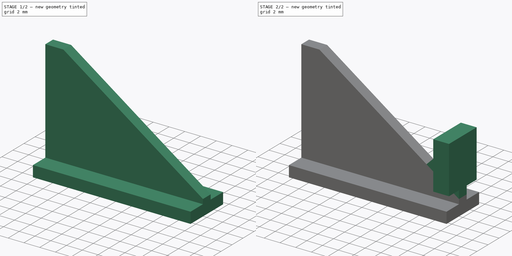
[diagram: build sequence overview — one tinted view per stage of 2, left to right]
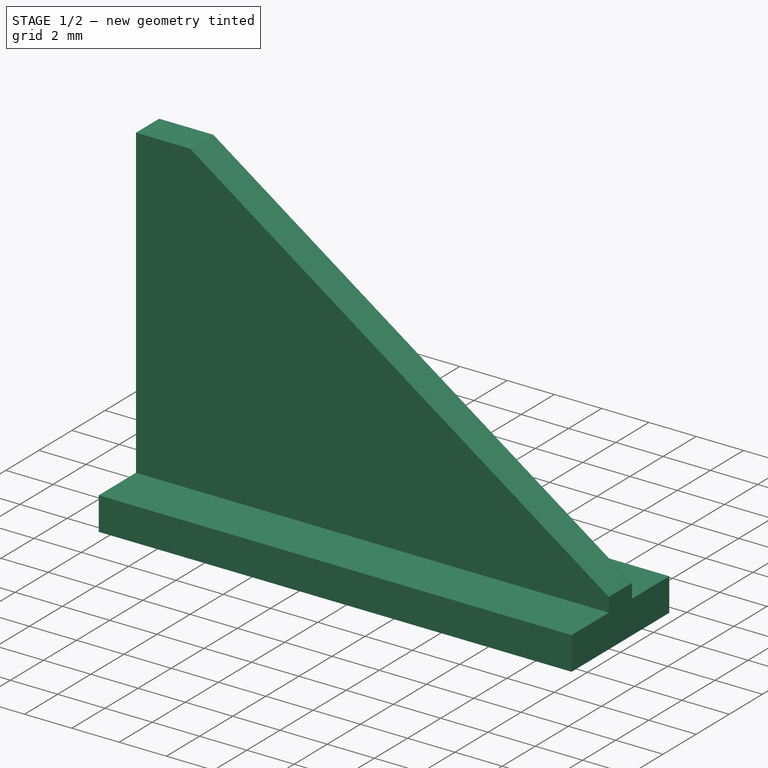
[diagram: stage 1 of 2 — iso view after this stage's code; geometry added in this stage tinted green]
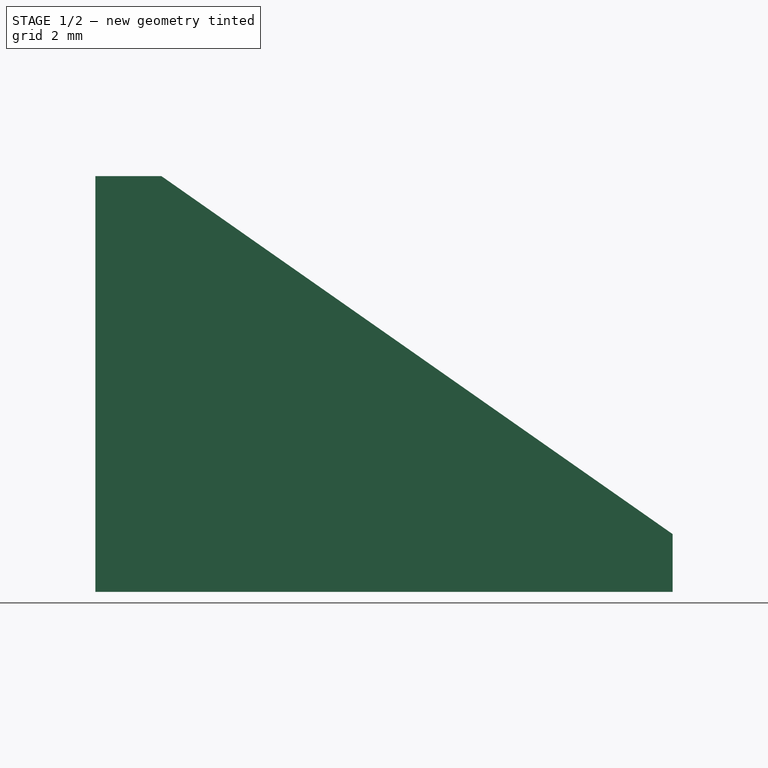
[diagram: stage 1 of 2 — front view after this stage's code; geometry added in this stage tinted green]
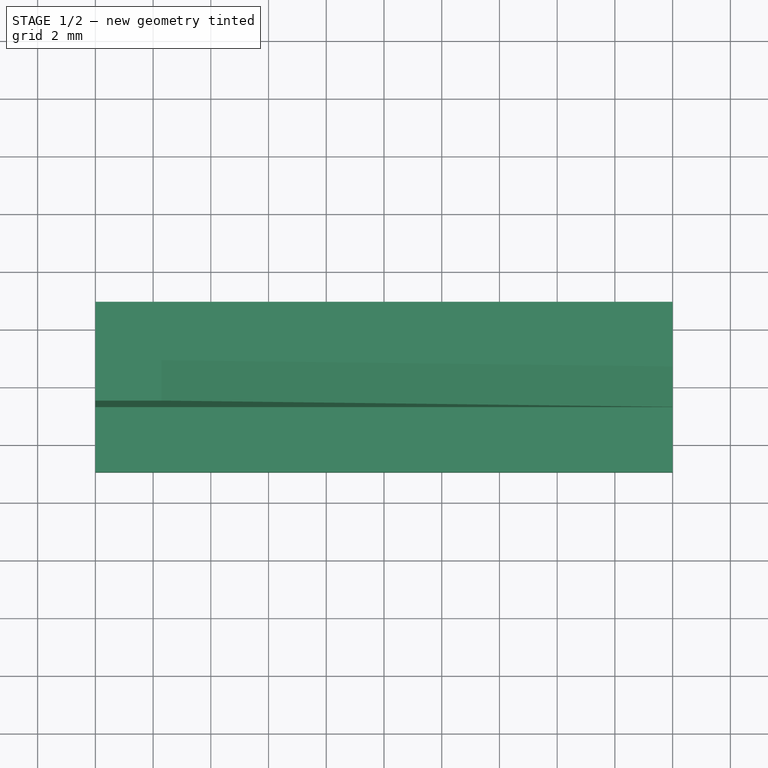
[diagram: stage 1 of 2 — top view after this stage's code; geometry added in this stage tinted green]
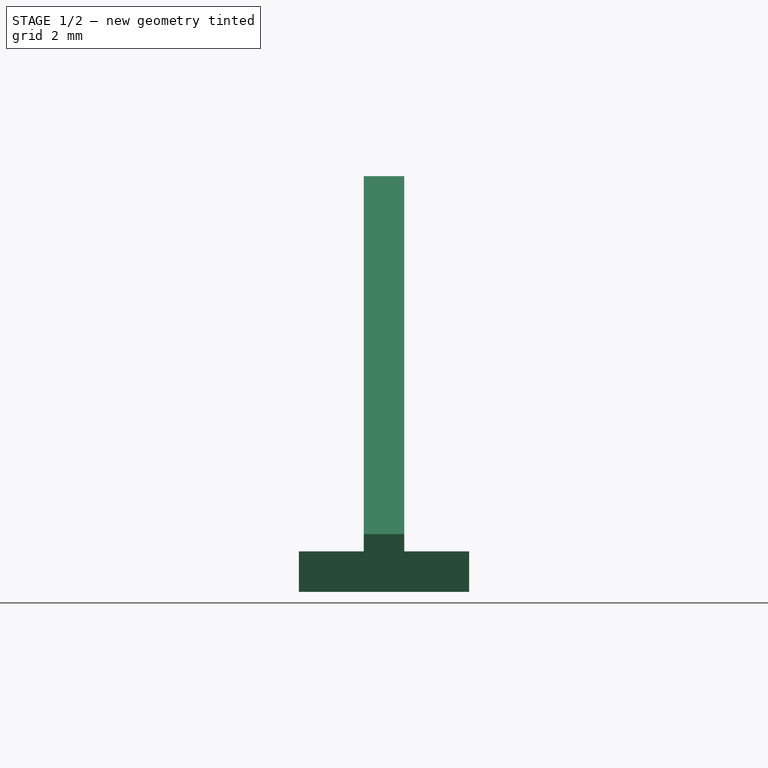
[diagram: stage 1 of 2 — right view after this stage's code; geometry added in this stage tinted green]
FCSTD DOCUMENT  (FreeCAD 0.18R14090 (Git))
Label: ZEndStopClip4
License: All rights reserved
LicenseURL: http://en.wikipedia.org/wiki/All_rights_reserved
objects: Sketcher::SketchObject×4, PartDesign::Pad×3, PartDesign::Plane×1, PartDesign::Pocket×1, PartDesign::Body×1, App::Part×1
note: 14 computed .brp shape members not serialized (recipe doc carries the construction recipe); baked Part::Feature solids carry a one-line shape summary decoded from their .brp

FEATURE [Sketcher::SketchObject] Sketch  label="ClipSketch"
  MapMode = 5
  Placement = pos=(0,0,0) rot=(0.57735,0.57735,0.57735;2.0944rad)
  Support = -> [YZ_Plane001]
  sketch-geometry (8):
    g0: LineSegment StartX=-2.95 StartY=0 StartZ=0 EndX=-2.95 EndY=1.4 EndZ=0
    g1: LineSegment StartX=-2.95 StartY=1.4 StartZ=0 EndX=-0.7 EndY=1.4 EndZ=0
    g2: LineSegment StartX=-0.7 StartY=1.4 StartZ=0 EndX=-0.7 EndY=14.4 EndZ=0
    g3: LineSegment StartX=-0.7 StartY=14.4 StartZ=0 EndX=0.7 EndY=14.4 EndZ=0
    g4: LineSegment StartX=2.95 StartY=0 StartZ=0 EndX=2.95 EndY=1.4 EndZ=0
    g5: LineSegment StartX=2.95 StartY=1.4 StartZ=0 EndX=0.7 EndY=1.4 EndZ=0
    g6: LineSegment StartX=0.7 StartY=1.4 StartZ=0 EndX=0.7 EndY=14.4 EndZ=0
    g7: LineSegment StartX=-2.95 StartY=0 StartZ=0 EndX=2.95 EndY=0 EndZ=0
  constraints (21):
    c: PointOnObject(g0,g-1)
    c: Vertical(g0)
    c: Coincident(g1,g0)
    c: Horizontal(g1)
    c: Coincident(g2,g1)
    c: Vertical(g2)
    c: Coincident(g3,g2)
    c: Coincident(g5,g4)
    c: Horizontal(g5)
    c: Coincident(g6,g5)
    c: Coincident(g3,g6)
    c: Coincident(g7,g0)
    c: Coincident(g7,g4)
    c: Symmetric(g4,g0,g-2)
    c: Symmetric(g3,g2,g-2)
    c: Symmetric(g0,g4,g-2)
    c: Distance(g4) = 1.4
    c: Distance(g7) = 5.9
    c: Equal(g1,g5)
    c: Distance(g5) = 2.25
    c: Distance(g6) = 13
FEATURE [PartDesign::Pad] Pad  label="ClipPad"
  Length = 20
  Length2 = 100
  Placement = pos=(0,0,0) rot=(0.57735,0.57735,0.57735;2.0944rad)
  Profile = -> Sketch
  Type = 0
FEATURE [PartDesign::Plane] DatumPlane  label="TopPlane"
  AttachmentOffset = pos=(0,0,20) rot=(0,0,1;0rad)
  MapMode = 5
  Placement = pos=(20,-2e-12,2e-12) rot=(0.57735,0.57735,0.57735;2.0944rad)
  Support = -> [YZ_Plane001]
FEATURE [Sketcher::SketchObject] Sketch001  label="TuneClampSketch"
  ExternalGeometry = -> [Sketch]
  MapMode = 5
  Placement = pos=(20,-2e-12,2e-12) rot=(0.57735,0.57735,0.57735;2.0944rad)
  Support = -> [DatumPlane]
  sketch-geometry (11):
    g0: LineSegment StartX=-2.5 StartY=9 StartZ=0 EndX=2.5 EndY=9 EndZ=0
    g1: LineSegment StartX=2.5 StartY=9 StartZ=0 EndX=2.5 EndY=3 EndZ=0
    g2: LineSegment StartX=-2.5 StartY=3 StartZ=0 EndX=-2.5 EndY=9 EndZ=0
    g3: LineSegment [constr] StartX=-2.5 StartY=7 StartZ=0 EndX=-0.7 EndY=7 EndZ=0
    g4: LineSegment [constr] StartX=0.7 StartY=7 StartZ=0 EndX=2.5 EndY=7 EndZ=0
    g5: LineSegment StartX=-2.5 StartY=3 StartZ=0 EndX=-0.7 EndY=3 EndZ=0
    g6: LineSegment StartX=-0.7 StartY=3 StartZ=0 EndX=-0.7 EndY=1.4 EndZ=0
    g7: LineSegment StartX=-0.7 StartY=1.4 StartZ=0 EndX=0.7 EndY=1.4 EndZ=0
    g8: LineSegment StartX=2.5 StartY=3 StartZ=0 EndX=0.7 EndY=3 EndZ=0
    g9: LineSegment StartX=0.7 StartY=3 StartZ=0 EndX=0.7 EndY=1.4 EndZ=0
    g10: LineSegment [constr] StartX=-0.7 StartY=7 StartZ=0 EndX=0.7 EndY=7 EndZ=0
  constraints (32):
    c: Horizontal(g0)
    c: Coincident(g1,g0)
    c: Vertical(g1)
    c: Coincident(g2,g0)
    c: Vertical(g2)
    c: PointOnObject(g3,g2)
    c: PointOnObject(g3,g-3)
    c: Horizontal(g3)
    c: PointOnObject(g4,g-4)
    c: PointOnObject(g4,g1)
    c: Horizontal(g4)
    c: Equal(g4,g3)
    c: DistanceY(g-1,g1) = 3
    c: Distance(g1) = 6
    c: Distance(g0) = 5
    c: Coincident(g5,g2)
    c: PointOnObject(g5,g-3)
    c: Horizontal(g5)
    c: Coincident(g6,g5)
    c: Coincident(g6,g-3)
    c: Coincident(g7,g6)
    c: Coincident(g7,g-4)
    c: Coincident(g8,g1)
    c: PointOnObject(g8,g-4)
    c: Horizontal(g8)
    c: Coincident(g9,g8)
    c: Coincident(g9,g7)
    c: Equal(g9,g6)
    c: Coincident(g10,g3)
    c: Coincident(g10,g4)
    c: Horizontal(g10)
    c: Distance(g3,g-1) = 7
FEATURE [Sketcher::SketchObject] Sketch002  label="ZTuneSketch"
  ExternalGeometry = -> [DatumPlane,Sketch]
  MapMode = 5
  Placement = pos=(0,0,0) rot=(1,0,0;1.5708rad)
  Support = -> [XZ_Plane001]
  sketch-geometry (4):
    g0: LineSegment StartX=20 StartY=14.4 StartZ=0 EndX=2.29096 EndY=14.4 EndZ=0
    g1: LineSegment StartX=2.29096 StartY=14.4 StartZ=0 EndX=20 EndY=2 EndZ=0
    g2: LineSegment StartX=20 StartY=2 StartZ=0 EndX=20 EndY=14.4 EndZ=0
    g3: LineSegment [constr] StartX=2.29096 StartY=14.4 StartZ=0 EndX=0 EndY=14.4 EndZ=0
  constraints (11):
    c: PointOnObject(g0,g-3)
    c: Horizontal(g0)
    c: Coincident(g1,g0)
    c: PointOnObject(g1,g-3)
    c: Coincident(g2,g1)
    c: Coincident(g2,g0)
    c: Coincident(g3,g0)
    c: Coincident(g3,g-4)
    c: Horizontal(g3)
    c: Angle(g1,g0) = 0.610865
    c: DistanceY(g-1,g1) = 2
FEATURE [PartDesign::Pocket] Pocket  label="ZTunePocket"
  BaseFeature = -> Pad
  Length = 5
  Length2 = 100
  Midplane = true
  Placement = pos=(0,0,0) rot=(0.57735,0.57735,0.57735;2.0944rad)
  Profile = -> Sketch002
  Type = 1
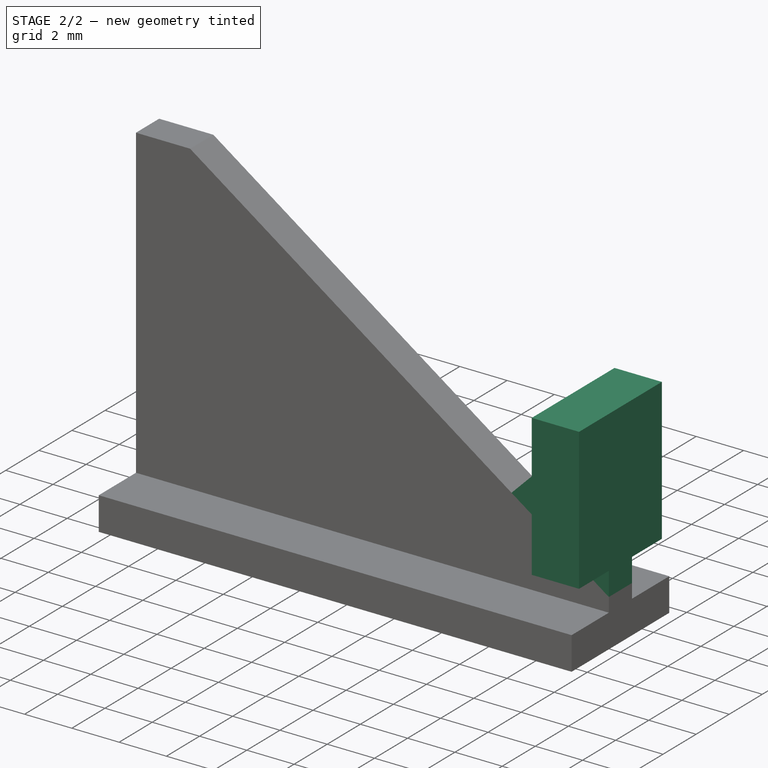
[diagram: stage 2 of 2 — iso view after this stage's code; geometry added in this stage tinted green]
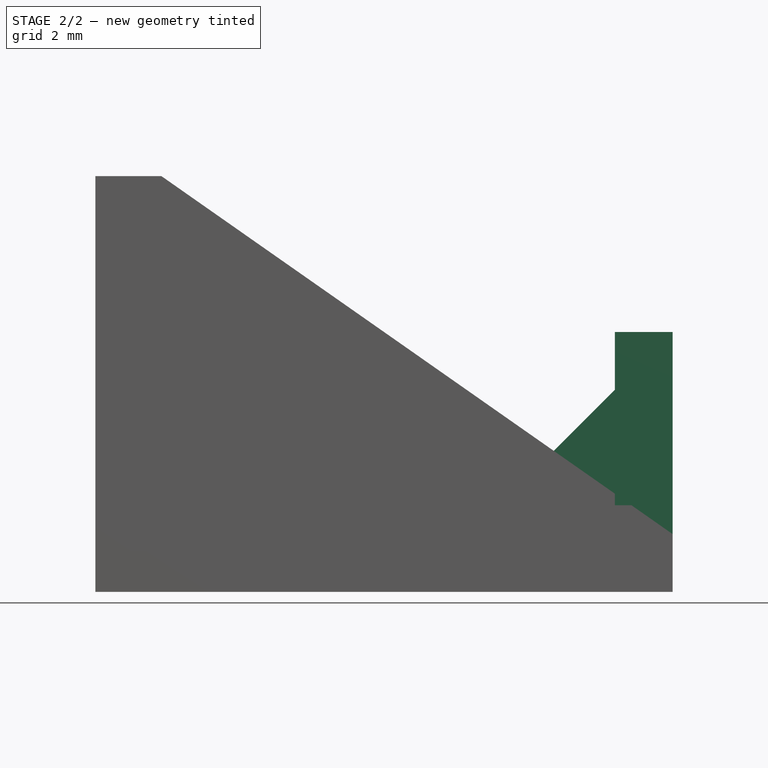
[diagram: stage 2 of 2 — front view after this stage's code; geometry added in this stage tinted green]
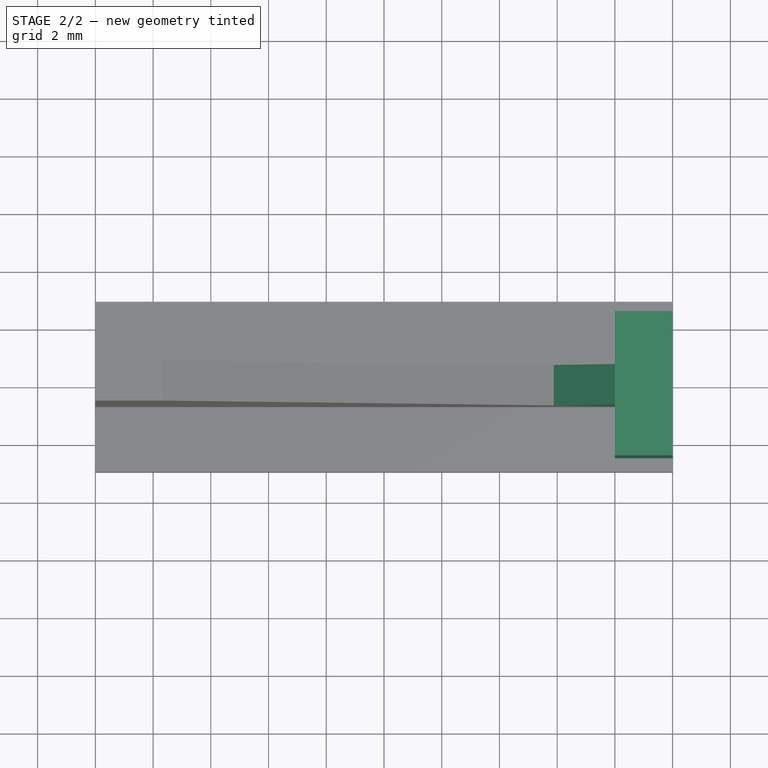
[diagram: stage 2 of 2 — top view after this stage's code; geometry added in this stage tinted green]
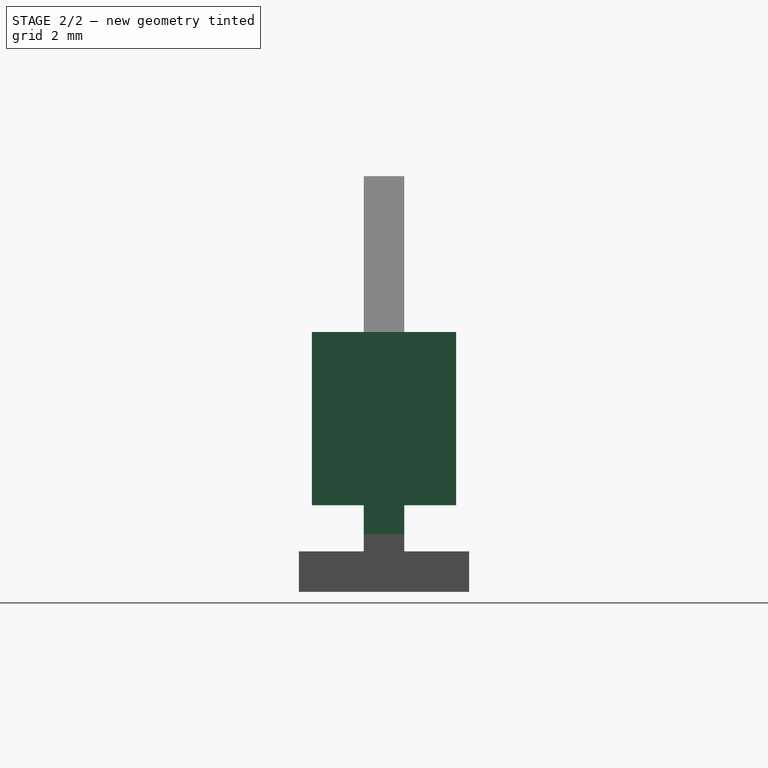
[diagram: stage 2 of 2 — right view after this stage's code; geometry added in this stage tinted green]
FEATURE [PartDesign::Pad] Pad001  label="TuneClampPad"
  BaseFeature = -> Pocket
  Length = 2
  Length2 = 100
  Placement = pos=(0,0,0) rot=(0.57735,0.57735,0.57735;2.0944rad)
  Profile = -> Sketch001
  Reversed = true
  Type = 0
FEATURE [Sketcher::SketchObject] Sketch003  label="StiffenerSketch"
  ExternalGeometry = -> [Sketch001]
  MapMode = 5
  Placement = pos=(0,0,0) rot=(1,0,0;1.5708rad)
  Support = -> [XZ_Plane001]
  sketch-geometry (3):
    g0: LineSegment StartX=20 StartY=3 StartZ=0 EndX=14 EndY=3 EndZ=0
    g1: LineSegment StartX=14 StartY=3 StartZ=0 EndX=20 EndY=9 EndZ=0
    g2: LineSegment StartX=20 StartY=9 StartZ=0 EndX=20 EndY=3 EndZ=0
  constraints (7):
    c: Coincident(g0,g-3)
    c: Horizontal(g0)
    c: Coincident(g1,g0)
    c: Coincident(g2,g0)
    c: Equal(g0,g2)
    c: Coincident(g1,g-4)
    c: Coincident(g2,g1)
FEATURE [PartDesign::Pad] Pad002  label="StiffenerPad"
  BaseFeature = -> Pad001
  Length = 1.4
  Length2 = 100
  Midplane = true
  Placement = pos=(0,0,0) rot=(0.57735,0.57735,0.57735;2.0944rad)
  Profile = -> Sketch003
  Type = 0
FEATURE [PartDesign::Body] Body  label="ClipBody"
  Group = -> [Sketch,Pad,DatumPlane,Sketch002,Pocket,Sketch001,Pad001,Sketch003,Pad002]
  Origin = -> Origin001
  Tip = -> Pad002
FEATURE [App::Part] Part  label="ZEndStopClip4Part"
  Group = -> [Body]
  License = CC BY 3.0
  LicenseURL = http://creativecommons.org/licenses/by/3.0/
  Origin = -> Origin
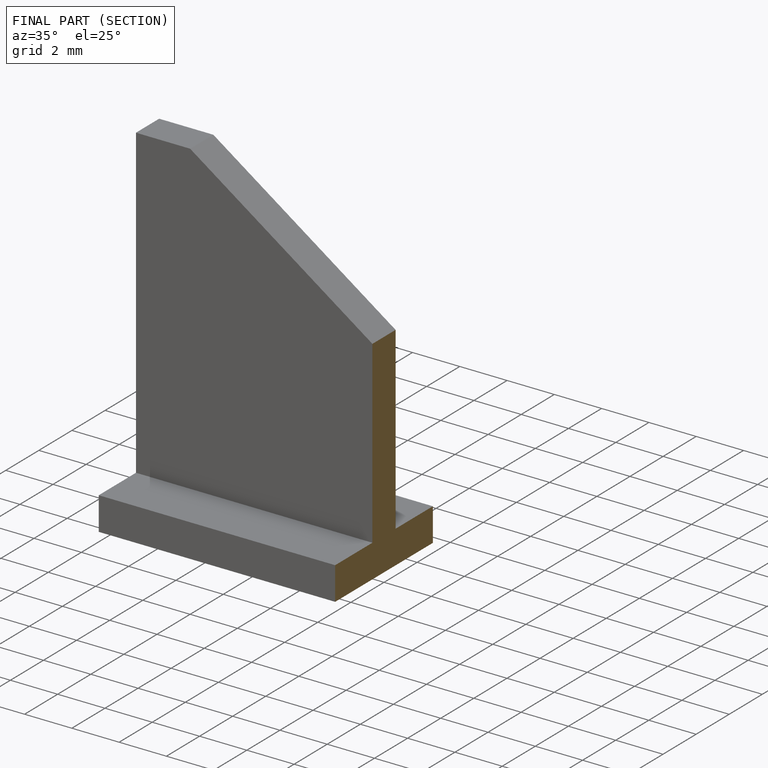
[diagram: finished part — half-section view (interior)]
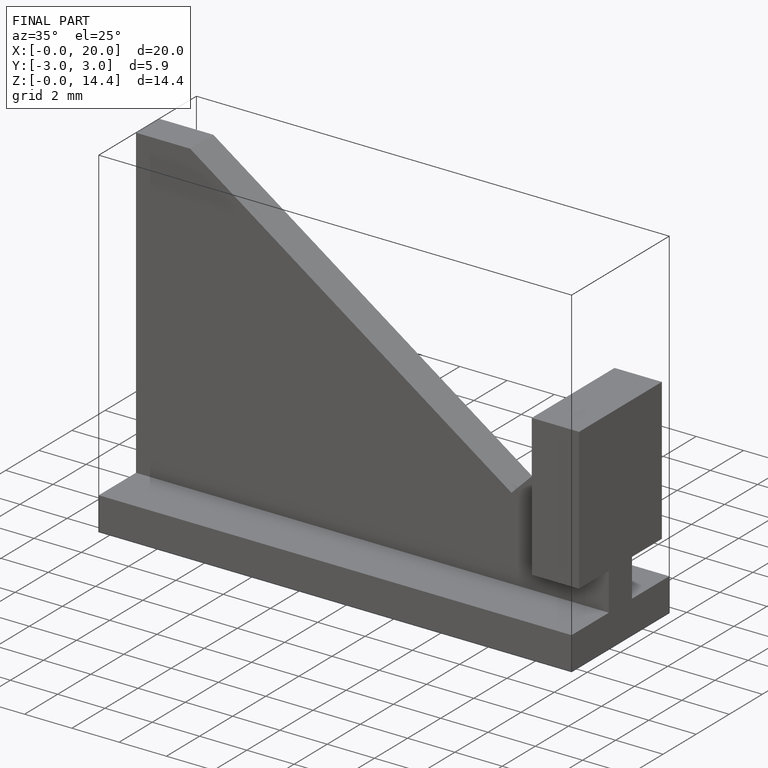
[diagram: finished part — iso view with bounding-box wireframe]
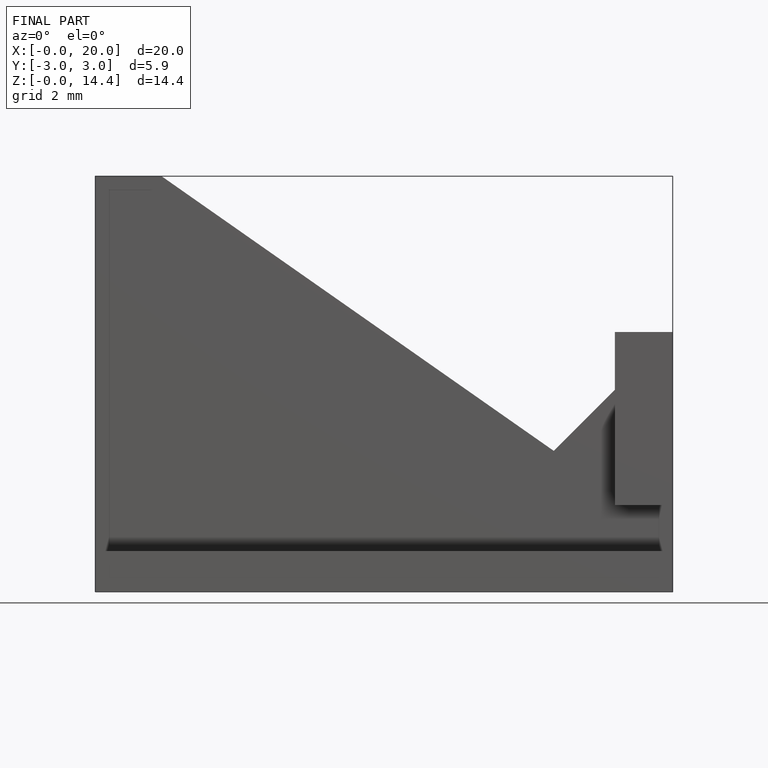
[diagram: finished part — front view with bounding-box wireframe]
